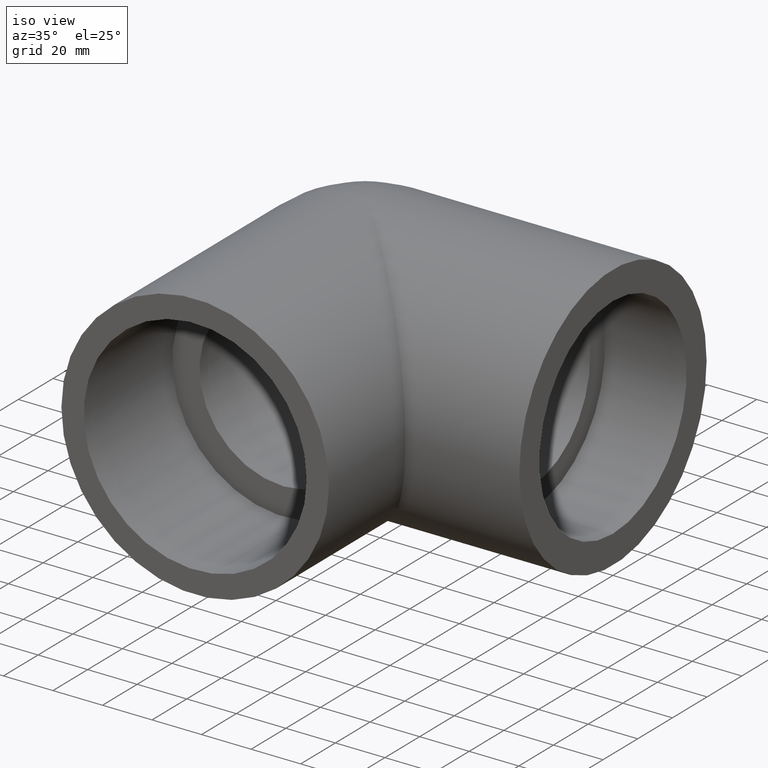
[diagram: clean part render]
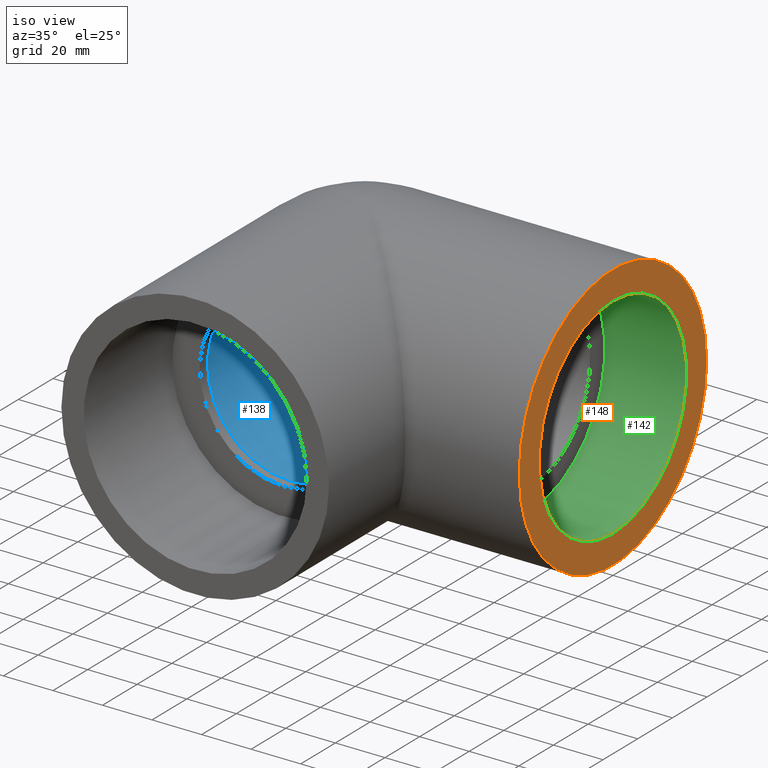
[diagram: same view with three faces highlighted in distinct colors, each labeled with its STEP entity id]
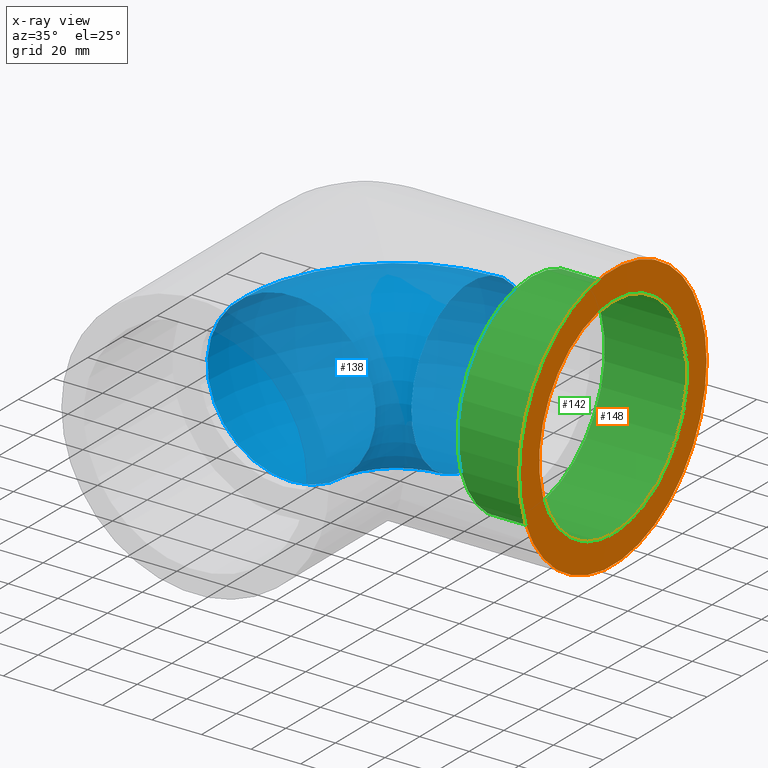
[diagram: x-ray of the same camera — body ghosted, the three highlighted faces saturated]
A machine part, iso view with three faces highlighted in distinct colors.
The next image is the same camera in x-ray (body ghosted, the three faces saturated) — at least one of them is partly hidden behind the body in this view.
Their STEP definitions:

[orange] entity #148 — the highlighted planar face has unit normal (1, 0, 0).
#20=PLANE('',#175);
#32=FACE_BOUND('',#67,.T.);
#44=FACE_OUTER_BOUND('',#66,.T.);
#66=EDGE_LOOP('',(#129));
#67=EDGE_LOOP('',(#130));
#75=CIRCLE('',#164,42.463);
#79=CIRCLE('',#174,54.);
#87=VERTEX_POINT('',#249);
#91=VERTEX_POINT('',#263);
#99=EDGE_CURVE('',#87,#87,#75,.T.);
#104=EDGE_CURVE('',#91,#91,#79,.T.);
#129=ORIENTED_EDGE('',*,*,#104,.T.);
#130=ORIENTED_EDGE('',*,*,#99,.T.);
#148=ADVANCED_FACE('',(#44,#32),#20,.T.);
#164=AXIS2_PLACEMENT_3D('',#250,#204,#205);
#174=AXIS2_PLACEMENT_3D('',#264,#224,#225);
#175=AXIS2_PLACEMENT_3D('',#265,#226,#227);
#204=DIRECTION('center_axis',(-1.,0.,0.));
#205=DIRECTION('ref_axis',(0.,0.,1.));
#224=DIRECTION('center_axis',(1.,0.,0.));
#225=DIRECTION('ref_axis',(0.,0.,-1.));
#226=DIRECTION('center_axis',(1.,0.,0.));
#227=DIRECTION('ref_axis',(0.,0.,-1.));
#249=CARTESIAN_POINT('',(100.,5.20021770321941E-15,-42.463));
#250=CARTESIAN_POINT('Origin',(100.,0.,0.));
#263=CARTESIAN_POINT('',(100.,54.,0.));
#264=CARTESIAN_POINT('Origin',(100.,0.,0.));
#265=CARTESIAN_POINT('Origin',(100.,0.,0.));

[blue] entity #138 — the highlighted toroidal blend (fillet) surface has major radius 42.463 mm and minor (blend) radius 33.9704 mm.
#21=TOROIDAL_SURFACE('',#154,42.463,33.9704);
#23=FACE_BOUND('',#48,.T.);
#34=FACE_OUTER_BOUND('',#47,.T.);
#47=EDGE_LOOP('',(#107));
#48=EDGE_LOOP('',(#108));
#69=CIRCLE('',#153,33.9704);
#70=CIRCLE('',#155,33.9704);
#81=VERTEX_POINT('',#232);
#82=VERTEX_POINT('',#235);
#93=EDGE_CURVE('',#81,#81,#69,.T.);
#94=EDGE_CURVE('',#82,#82,#70,.T.);
#107=ORIENTED_EDGE('',*,*,#93,.T.);
#108=ORIENTED_EDGE('',*,*,#94,.F.);
#138=ADVANCED_FACE('',(#34,#23),#21,.F.);
#153=AXIS2_PLACEMENT_3D('',#233,#182,#183);
#154=AXIS2_PLACEMENT_3D('',#234,#184,#185);
#155=AXIS2_PLACEMENT_3D('',#236,#186,#187);
#182=DIRECTION('center_axis',(-2.83276944882399E-16,-1.,0.));
#183=DIRECTION('ref_axis',(0.,0.,1.));
#184=DIRECTION('center_axis',(0.,0.,1.));
#185=DIRECTION('ref_axis',(1.,0.,0.));
#186=DIRECTION('center_axis',(-1.,0.,0.));
#187=DIRECTION('ref_axis',(0.,0.,1.));
#232=CARTESIAN_POINT('',(4.72893181304446E-15,-42.463,-33.9704));
#233=CARTESIAN_POINT('Origin',(8.88910597561999E-15,-42.463,0.));
#234=CARTESIAN_POINT('Origin',(42.463,-42.463,0.));
#235=CARTESIAN_POINT('',(42.463,4.15285238395679E-15,-33.9704));
#236=CARTESIAN_POINT('Origin',(42.463,-7.32177861873785E-18,0.));

[green] entity #142 — the highlighted cylindrical surface (bore or boss wall) has radius 42.463 mm, axis along (-1, 0, 0).
#27=FACE_BOUND('',#56,.T.);
#38=FACE_OUTER_BOUND('',#55,.T.);
#55=EDGE_LOOP('',(#115));
#56=EDGE_LOOP('',(#116));
#74=CIRCLE('',#163,42.463);
#75=CIRCLE('',#164,42.463);
#86=VERTEX_POINT('',#247);
#87=VERTEX_POINT('',#249);
#98=EDGE_CURVE('',#86,#86,#74,.T.);
#99=EDGE_CURVE('',#87,#87,#75,.T.);
#115=ORIENTED_EDGE('',*,*,#98,.T.);
#116=ORIENTED_EDGE('',*,*,#99,.F.);
#134=CYLINDRICAL_SURFACE('',#162,42.463);
#142=ADVANCED_FACE('',(#38,#27),#134,.F.);
#162=AXIS2_PLACEMENT_3D('',#246,#200,#201);
#163=AXIS2_PLACEMENT_3D('',#248,#202,#203);
#164=AXIS2_PLACEMENT_3D('',#250,#204,#205);
#200=DIRECTION('center_axis',(-1.,0.,0.));
#201=DIRECTION('ref_axis',(0.,0.,1.));
#202=DIRECTION('center_axis',(-1.,0.,0.));
#203=DIRECTION('ref_axis',(0.,0.,1.));
#204=DIRECTION('center_axis',(-1.,0.,0.));
#205=DIRECTION('ref_axis',(0.,0.,1.));
#246=CARTESIAN_POINT('Origin',(100.,0.,0.));
#247=CARTESIAN_POINT('',(67.,5.20021770321941E-15,-42.463));
#248=CARTESIAN_POINT('Origin',(67.,0.,0.));
#249=CARTESIAN_POINT('',(100.,5.20021770321941E-15,-42.463));
#250=CARTESIAN_POINT('Origin',(100.,0.,0.));